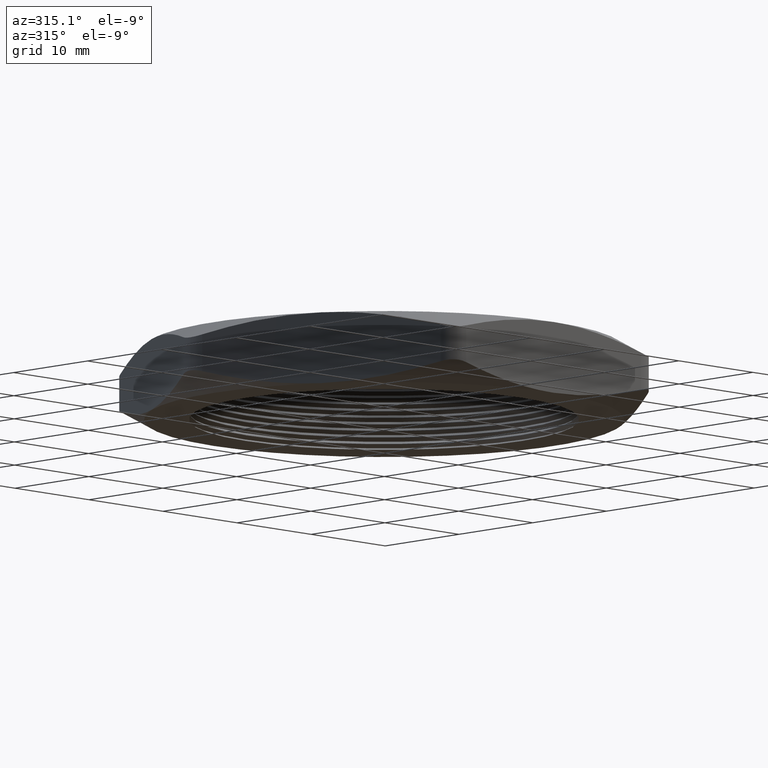
[diagram: clean part render]
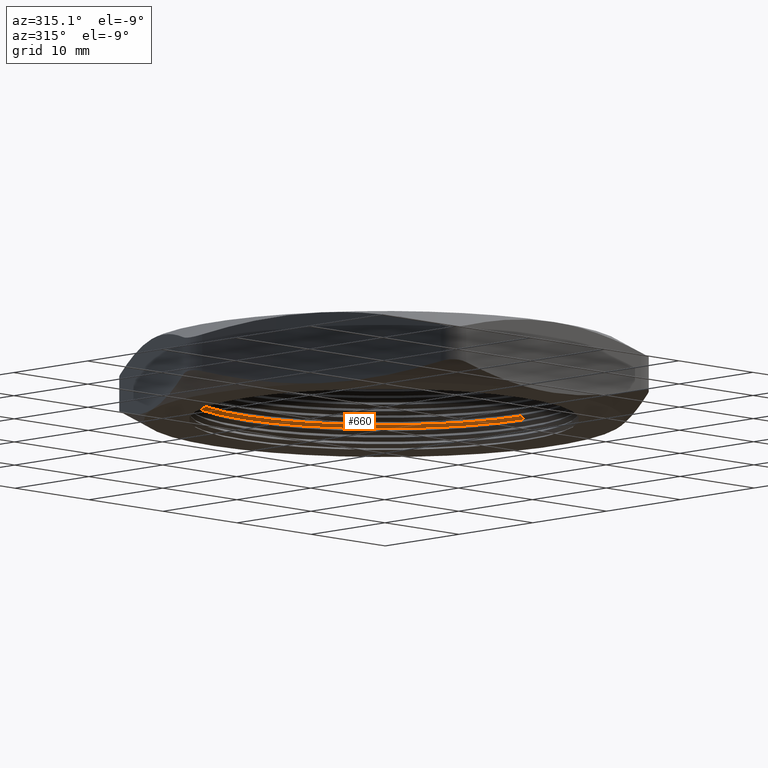
[diagram: same view with one face highlighted and labeled with its STEP entity id]
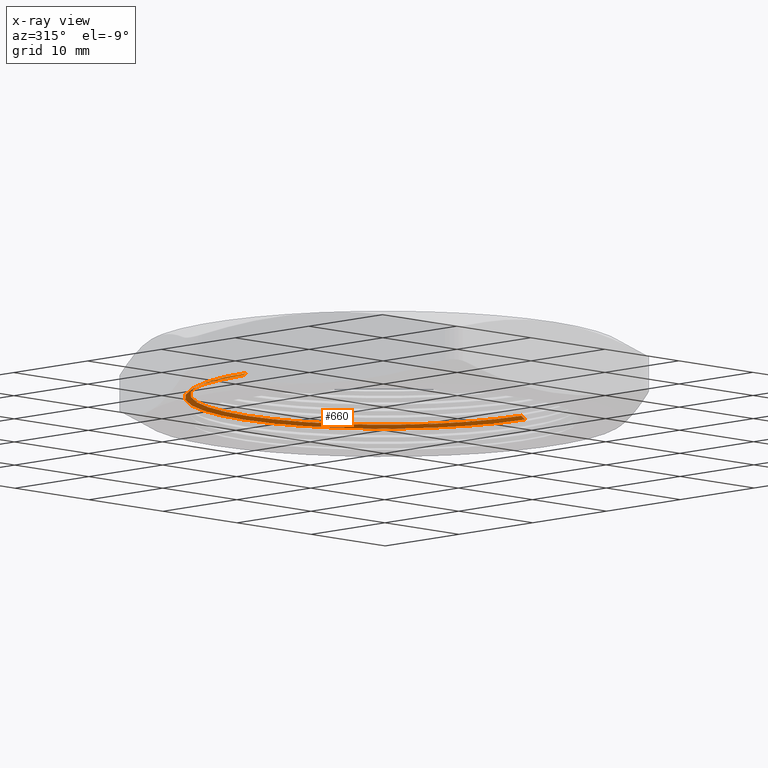
[diagram: x-ray of the same camera — body ghosted, the highlighted face saturated]
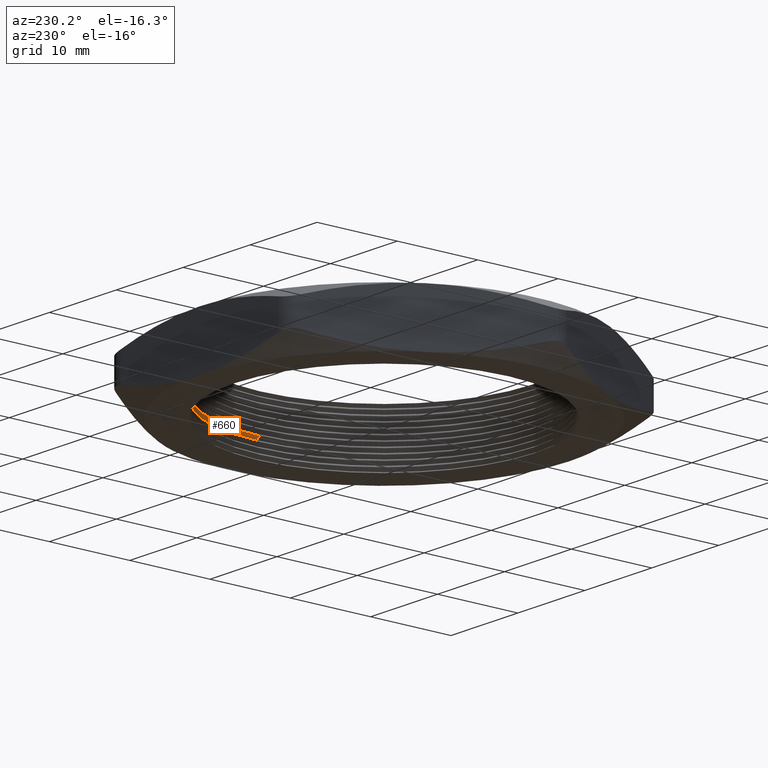
[diagram: same view with one face highlighted and labeled with its STEP entity id]
A machine part, auxiliary view. The second image highlights one B-rep face of the part: STEP entity #660.
The next image is the same camera in x-ray: the body ghosted, the highlighted face saturated — about 12% of this face is hidden behind the body in this view.
A second angle (auxiliary view) of the same face is appended — the face is thin or edge-on in the first view.
In plain terms, the highlighted conical surface has half-angle 60 deg.
Its self-contained STEP definition (entity closure, byte-faithful):
#660 = ADVANCED_FACE ( 'NONE', ( #2130 ), #2124, .F. ) ;
#822 = EDGE_CURVE ( 'NONE', #2289, #2288, #1397, .T. ) ;
#1394 = DIRECTION ( 'NONE',  ( 0.0000000000000000000, 0.0000000000000000000, 1.000000000000000000 ) ) ;
#1395 = CARTESIAN_POINT ( 'NONE',  ( 0.0000000000000000000, 0.0000000000000000000, 0.09500000000000001500 ) ) ;
#1396 = AXIS2_PLACEMENT_3D ( 'NONE', #1395, #1394, #1421 ) ;
#1397 = CIRCLE ( 'NONE', #1396, 0.7299999999999999800 ) ;
#1421 = DIRECTION ( 'NONE',  ( 1.000000000000000000, 0.0000000000000000000, 0.0000000000000000000 ) ) ;
#1599 = DIRECTION ( 'NONE',  ( 1.000000000000000000, 0.0000000000000000000, 0.0000000000000000000 ) ) ;
#1600 = DIRECTION ( 'NONE',  ( 0.0000000000000000000, 0.0000000000000000000, 1.000000000000000000 ) ) ;
#1601 = CARTESIAN_POINT ( 'NONE',  ( 0.0000000000000000000, 0.0000000000000000000, 0.08345299461620765700 ) ) ;
#1602 = AXIS2_PLACEMENT_3D ( 'NONE', #1601, #1600, #1599 ) ;
#1603 = CIRCLE ( 'NONE', #1602, 0.7500000000000001100 ) ;
#1840 = CARTESIAN_POINT ( 'NONE',  ( 0.7299999999999999800, 8.939921633775678300E-017, 0.09500000000000001500 ) ) ;
#1841 = CARTESIAN_POINT ( 'NONE',  ( -0.7299999999999999800, 0.0000000000000000000, 0.09500000000000001500 ) ) ;
#1910 = DIRECTION ( 'NONE',  ( -0.8660254037844423700, 0.0000000000000000000, -0.4999999999999933900 ) ) ;
#1911 = VECTOR ( 'NONE', #1910, 39.37007874015748100 ) ;
#1912 = CARTESIAN_POINT ( 'NONE',  ( -0.7500000000000001100, 0.0000000000000000000, 0.08345299461620765700 ) ) ;
#1919 = DIRECTION ( 'NONE',  ( 0.8660254037844423700, 1.060575238724911700E-016, -0.4999999999999933900 ) ) ;
#1920 = VECTOR ( 'NONE', #1919, 39.37007874015748100 ) ;
#1921 = CARTESIAN_POINT ( 'NONE',  ( 0.7500000000000001100, 9.184850993605150900E-017, 0.08345299461620765700 ) ) ;
#1922 = LINE ( 'NONE', #1921, #1920 ) ;
#2051 = LINE ( 'NONE', #1912, #1911 ) ;
#2069 = CARTESIAN_POINT ( 'NONE',  ( 0.7500000000000001100, 9.184850993605150900E-017, 0.08345299461620765700 ) ) ;
#2075 = CARTESIAN_POINT ( 'NONE',  ( -0.7500000000000001100, 0.0000000000000000000, 0.08345299461620765700 ) ) ;
#2124 = CONICAL_SURFACE ( 'NONE', #2125, 0.7500000000000001100, 1.047197551196605400 ) ;
#2125 = AXIS2_PLACEMENT_3D ( 'NONE', #2140, #2139, #2138 ) ;
#2130 = FACE_OUTER_BOUND ( 'NONE', #2405, .T. ) ;
#2138 = DIRECTION ( 'NONE',  ( -1.000000000000000000, 0.0000000000000000000, 0.0000000000000000000 ) ) ;
#2139 = DIRECTION ( 'NONE',  ( 0.0000000000000000000, 0.0000000000000000000, -1.000000000000000000 ) ) ;
#2140 = CARTESIAN_POINT ( 'NONE',  ( 0.0000000000000000000, 0.0000000000000000000, 0.08345299461620765700 ) ) ;
#2144 = ORIENTED_EDGE ( 'NONE', *, *, #822, .T. ) ;
#2147 = ORIENTED_EDGE ( 'NONE', *, *, #2400, .F. ) ;
#2191 = EDGE_CURVE ( 'NONE', #2421, #2418, #1603, .T. ) ;
#2194 = ORIENTED_EDGE ( 'NONE', *, *, #2349, .T. ) ;
#2196 = ORIENTED_EDGE ( 'NONE', *, *, #2191, .F. ) ;
#2288 = VERTEX_POINT ( 'NONE', #1841 ) ;
#2289 = VERTEX_POINT ( 'NONE', #1840 ) ;
#2349 = EDGE_CURVE ( 'NONE', #2288, #2418, #2051, .T. ) ;
#2400 = EDGE_CURVE ( 'NONE', #2289, #2421, #1922, .T. ) ;
#2405 = EDGE_LOOP ( 'NONE', ( #2147, #2144, #2194, #2196 ) ) ;
#2418 = VERTEX_POINT ( 'NONE', #2075 ) ;
#2421 = VERTEX_POINT ( 'NONE', #2069 ) ;